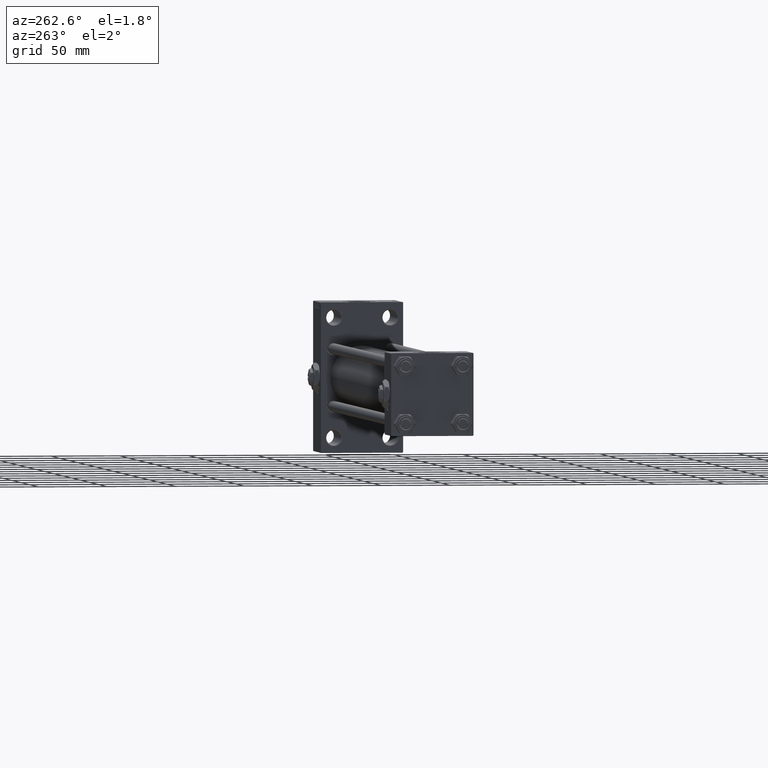
[diagram: clean part render]
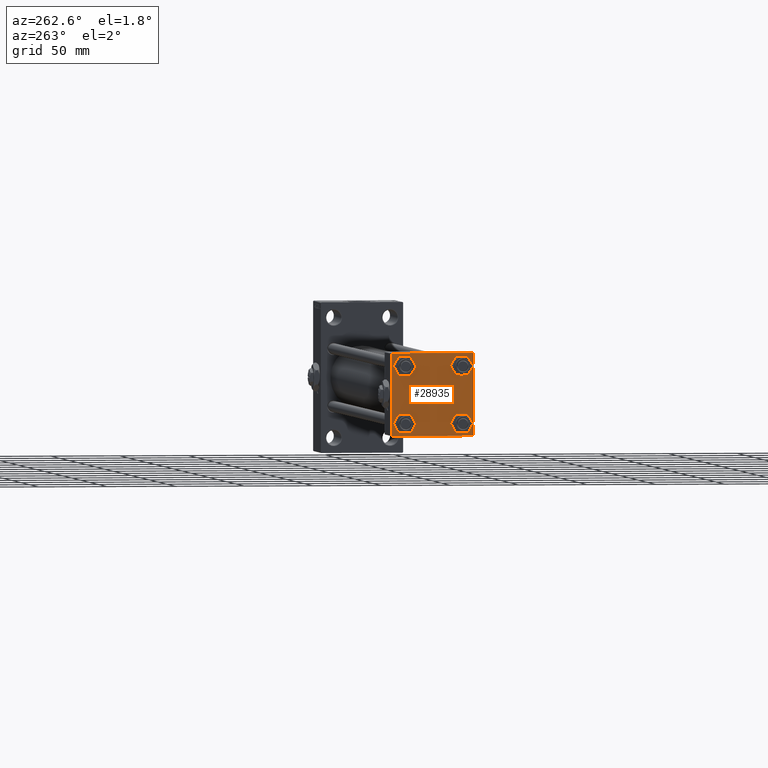
[diagram: same view with one face highlighted and labeled with its STEP entity id]
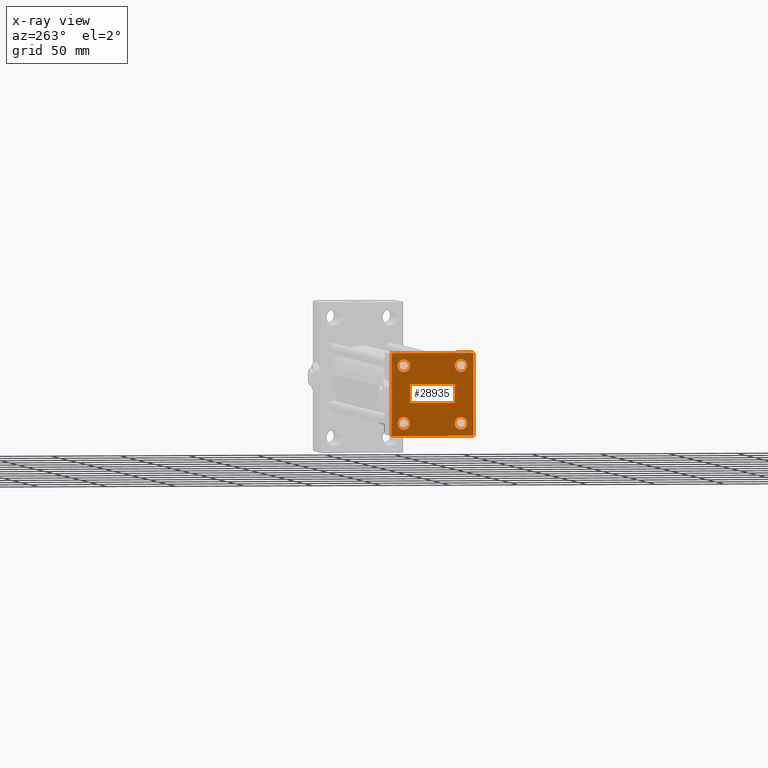
[diagram: x-ray of the same camera — body ghosted, the highlighted face saturated]
A machine part, auxiliary view. The second image highlights one B-rep face of the part: STEP entity #28935.
The next image is the same camera in x-ray: the body ghosted, the highlighted face saturated — about 0% of this face is hidden behind the body in this view.
In plain terms, the highlighted planar face has unit normal (-1, 0, 0).
Its self-contained STEP definition (entity closure, byte-faithful):
#411 = DIRECTION ( 'NONE',  ( 1.000000000000000000, -0.000000000000000000, 0.000000000000000000 ) ) ;
#1104 = ORIENTED_EDGE ( 'NONE', *, *, #23249, .T. ) ;
#1272 = DIRECTION ( 'NONE',  ( 0.000000000000000000, 0.000000000000000000, 1.000000000000000000 ) ) ;
#2023 = CIRCLE ( 'NONE', #35783, 4.500000000000017764 ) ;
#3257 = EDGE_CURVE ( 'NONE', #42248, #42733, #22132, .T. ) ;
#4174 = DIRECTION ( 'NONE',  ( 0.000000000000000000, -1.000000000000000000, -1.156482317317871725E-16 ) ) ;
#4233 = CIRCLE ( 'NONE', #47016, 4.500000000000017764 ) ;
#5017 = EDGE_CURVE ( 'NONE', #9885, #16781, #4233, .T. ) ;
#5416 = CARTESIAN_POINT ( 'NONE',  ( 0.000000000000000000, 29.49999999999999289, 30.00000000000000000 ) ) ;
#6948 = VECTOR ( 'NONE', #35025, 1000.000000000000000 ) ;
#7269 = DIRECTION ( 'NONE',  ( 1.000000000000000000, -0.000000000000000000, 0.000000000000000000 ) ) ;
#7451 = DIRECTION ( 'NONE',  ( 0.000000000000000000, 0.000000000000000000, 1.000000000000000000 ) ) ;
#7732 = CARTESIAN_POINT ( 'NONE',  ( 0.000000000000000000, 20.84999999999999787, -25.35000000000001918 ) ) ;
#7992 = FACE_BOUND ( 'NONE', #37170, .T. ) ;
#8558 = VERTEX_POINT ( 'NONE', #49642 ) ;
#9237 = CARTESIAN_POINT ( 'NONE',  ( 0.000000000000000000, -20.84999999999999076, 16.34999999999998721 ) ) ;
#9362 = CARTESIAN_POINT ( 'NONE',  ( 0.000000000000000000, 20.84999999999999787, -16.34999999999998366 ) ) ;
#9639 = ORIENTED_EDGE ( 'NONE', *, *, #50143, .F. ) ;
#9857 = LINE ( 'NONE', #37456, #17950 ) ;
#9885 = VERTEX_POINT ( 'NONE', #9362 ) ;
#10247 = EDGE_CURVE ( 'NONE', #17386, #35550, #15953, .T. ) ;
#10268 = CARTESIAN_POINT ( 'NONE',  ( 0.000000000000000000, -29.75000000000001066, -29.75000000000001066 ) ) ;
#11302 = DIRECTION ( 'NONE',  ( 0.000000000000000000, -1.000000000000000000, -1.156482317317871725E-16 ) ) ;
#11694 = ORIENTED_EDGE ( 'NONE', *, *, #14799, .T. ) ;
#11864 = FACE_OUTER_BOUND ( 'NONE', #42302, .T. ) ;
#12693 = VERTEX_POINT ( 'NONE', #36438 ) ;
#13058 = VECTOR ( 'NONE', #30112, 1000.000000000000114 ) ;
#14799 = EDGE_CURVE ( 'NONE', #15946, #48451, #19435, .T. ) ;
#14805 = EDGE_CURVE ( 'NONE', #45887, #31214, #40010, .T. ) ;
#14854 = DIRECTION ( 'NONE',  ( 1.000000000000000000, -0.000000000000000000, 0.000000000000000000 ) ) ;
#15272 = VECTOR ( 'NONE', #48175, 1000.000000000000114 ) ;
#15416 = DIRECTION ( 'NONE',  ( 0.000000000000000000, 0.000000000000000000, 1.000000000000000000 ) ) ;
#15946 = VERTEX_POINT ( 'NONE', #44129 ) ;
#15953 = CIRCLE ( 'NONE', #18440, 4.500000000000017764 ) ;
#16009 = DIRECTION ( 'NONE',  ( -1.000000000000000000, 0.000000000000000000, -0.000000000000000000 ) ) ;
#16355 = EDGE_CURVE ( 'NONE', #16781, #9885, #24410, .T. ) ;
#16756 = CARTESIAN_POINT ( 'NONE',  ( 0.000000000000000000, -30.00000000000000000, 29.99999999999999289 ) ) ;
#16781 = VERTEX_POINT ( 'NONE', #7732 ) ;
#16861 = ORIENTED_EDGE ( 'NONE', *, *, #5017, .T. ) ;
#16918 = EDGE_CURVE ( 'NONE', #8558, #46335, #28612, .T. ) ;
#17386 = VERTEX_POINT ( 'NONE', #34096 ) ;
#17950 = VECTOR ( 'NONE', #21215, 999.9999999999998863 ) ;
#18311 = CARTESIAN_POINT ( 'NONE',  ( 0.000000000000000000, 20.84999999999999787, 16.34999999999998366 ) ) ;
#18394 = CARTESIAN_POINT ( 'NONE',  ( 0.000000000000000000, -29.50000000000000000, -30.00000000000000711 ) ) ;
#18440 = AXIS2_PLACEMENT_3D ( 'NONE', #21160, #48953, #48711 ) ;
#18559 = ORIENTED_EDGE ( 'NONE', *, *, #39825, .T. ) ;
#18839 = CARTESIAN_POINT ( 'NONE',  ( 0.000000000000000000, 0.000000000000000000, 0.000000000000000000 ) ) ;
#18917 = ORIENTED_EDGE ( 'NONE', *, *, #34909, .T. ) ;
#19087 = ORIENTED_EDGE ( 'NONE', *, *, #14805, .T. ) ;
#19362 = FACE_BOUND ( 'NONE', #31599, .T. ) ;
#19416 = CARTESIAN_POINT ( 'NONE',  ( 0.000000000000000000, 20.84999999999999787, -20.85000000000000142 ) ) ;
#19435 = CIRCLE ( 'NONE', #30122, 4.500000000000017764 ) ;
#20245 = AXIS2_PLACEMENT_3D ( 'NONE', #27052, #26802, #30915 ) ;
#20672 = CARTESIAN_POINT ( 'NONE',  ( 0.000000000000000000, 29.99999999999999289, -30.00000000000000000 ) ) ;
#20768 = DIRECTION ( 'NONE',  ( 0.000000000000000000, 0.000000000000000000, 1.000000000000000000 ) ) ;
#20877 = EDGE_LOOP ( 'NONE', ( #16861, #29995 ) ) ;
#21013 = DIRECTION ( 'NONE',  ( 0.000000000000000000, 0.000000000000000000, 1.000000000000000000 ) ) ;
#21160 = CARTESIAN_POINT ( 'NONE',  ( 0.000000000000000000, -20.84999999999999076, -20.85000000000000497 ) ) ;
#21215 = DIRECTION ( 'NONE',  ( -0.000000000000000000, -0.7071067811865574537, -0.7071067811865376918 ) ) ;
#21242 = EDGE_CURVE ( 'NONE', #8558, #26702, #40444, .T. ) ;
#21721 = DIRECTION ( 'NONE',  ( 1.000000000000000000, -0.000000000000000000, 0.000000000000000000 ) ) ;
#21945 = EDGE_CURVE ( 'NONE', #12693, #26975, #9857, .T. ) ;
#22132 = LINE ( 'NONE', #37620, #38867 ) ;
#22154 = CARTESIAN_POINT ( 'NONE',  ( 0.000000000000000000, 29.49999999999997868, -30.00000000000000000 ) ) ;
#22349 = ORIENTED_EDGE ( 'NONE', *, *, #3257, .T. ) ;
#22371 = EDGE_LOOP ( 'NONE', ( #18559, #19087 ) ) ;
#22596 = CIRCLE ( 'NONE', #29184, 4.500000000000017764 ) ;
#22650 = LINE ( 'NONE', #46351, #37823 ) ;
#22997 = DIRECTION ( 'NONE',  ( 0.000000000000000000, 0.000000000000000000, 1.000000000000000000 ) ) ;
#23249 = EDGE_CURVE ( 'NONE', #28396, #26702, #44811, .T. ) ;
#23501 = CARTESIAN_POINT ( 'NONE',  ( 0.000000000000000000, -30.00000000000000000, -29.50000000000001776 ) ) ;
#24410 = CIRCLE ( 'NONE', #33423, 4.500000000000017764 ) ;
#24509 = VECTOR ( 'NONE', #28081, 1000.000000000000000 ) ;
#24731 = DIRECTION ( 'NONE',  ( 1.000000000000000000, -0.000000000000000000, 0.000000000000000000 ) ) ;
#26687 = CARTESIAN_POINT ( 'NONE',  ( 0.000000000000000000, 20.84999999999999787, 25.35000000000001918 ) ) ;
#26702 = VERTEX_POINT ( 'NONE', #23501 ) ;
#26802 = DIRECTION ( 'NONE',  ( 1.000000000000000000, -0.000000000000000000, 0.000000000000000000 ) ) ;
#26902 = ORIENTED_EDGE ( 'NONE', *, *, #39952, .T. ) ;
#26975 = VERTEX_POINT ( 'NONE', #22154 ) ;
#26993 = ORIENTED_EDGE ( 'NONE', *, *, #21945, .T. ) ;
#27052 = CARTESIAN_POINT ( 'NONE',  ( 0.000000000000000000, 20.84999999999999787, 20.85000000000000142 ) ) ;
#27346 = PLANE ( 'NONE',  #39629 ) ;
#28033 = CARTESIAN_POINT ( 'NONE',  ( 0.000000000000000000, -20.84999999999999076, -16.34999999999998721 ) ) ;
#28081 = DIRECTION ( 'NONE',  ( 0.000000000000000000, 0.000000000000000000, -1.000000000000000000 ) ) ;
#28396 = VERTEX_POINT ( 'NONE', #18394 ) ;
#28612 = LINE ( 'NONE', #32709, #15272 ) ;
#28935 = ADVANCED_FACE ( 'NONE', ( #7992, #19362, #34537, #34803, #11864 ), #27346, .T. ) ;
#29184 = AXIS2_PLACEMENT_3D ( 'NONE', #34415, #14854, #21013 ) ;
#29995 = ORIENTED_EDGE ( 'NONE', *, *, #16355, .T. ) ;
#30112 = DIRECTION ( 'NONE',  ( 0.000000000000000000, -0.7071067811865474617, 0.7071067811865474617 ) ) ;
#30122 = AXIS2_PLACEMENT_3D ( 'NONE', #45162, #21721, #7451 ) ;
#30843 = CARTESIAN_POINT ( 'NONE',  ( 0.000000000000000000, -29.49999999999998579, 29.99999999999999289 ) ) ;
#30915 = DIRECTION ( 'NONE',  ( 0.000000000000000000, 0.000000000000000000, 1.000000000000000000 ) ) ;
#31214 = VERTEX_POINT ( 'NONE', #26687 ) ;
#31599 = EDGE_LOOP ( 'NONE', ( #41033, #37573 ) ) ;
#32709 = CARTESIAN_POINT ( 'NONE',  ( -0.000000000000000000, -29.74999999999999645, 29.74999999999999645 ) ) ;
#33423 = AXIS2_PLACEMENT_3D ( 'NONE', #19416, #7269, #22997 ) ;
#34096 = CARTESIAN_POINT ( 'NONE',  ( 0.000000000000000000, -20.84999999999999076, -25.35000000000002274 ) ) ;
#34415 = CARTESIAN_POINT ( 'NONE',  ( 0.000000000000000000, 20.84999999999999787, 20.85000000000000142 ) ) ;
#34537 = FACE_BOUND ( 'NONE', #20877, .T. ) ;
#34803 = FACE_BOUND ( 'NONE', #22371, .T. ) ;
#34904 = ORIENTED_EDGE ( 'NONE', *, *, #21242, .F. ) ;
#34909 = EDGE_CURVE ( 'NONE', #26975, #28396, #47476, .T. ) ;
#35025 = DIRECTION ( 'NONE',  ( 0.000000000000000000, 0.000000000000000000, -1.000000000000000000 ) ) ;
#35315 = DIRECTION ( 'NONE',  ( -0.000000000000000000, 0.000000000000000000, 1.000000000000000000 ) ) ;
#35318 = EDGE_CURVE ( 'NONE', #35550, #17386, #46321, .T. ) ;
#35500 = DIRECTION ( 'NONE',  ( 1.000000000000000000, -0.000000000000000000, 0.000000000000000000 ) ) ;
#35550 = VERTEX_POINT ( 'NONE', #28033 ) ;
#35783 = AXIS2_PLACEMENT_3D ( 'NONE', #35980, #411, #20768 ) ;
#35980 = CARTESIAN_POINT ( 'NONE',  ( 0.000000000000000000, -20.84999999999999076, 20.85000000000000497 ) ) ;
#36438 = CARTESIAN_POINT ( 'NONE',  ( 0.000000000000000000, 29.99999999999999289, -29.50000000000000000 ) ) ;
#37170 = EDGE_LOOP ( 'NONE', ( #11694, #26902 ) ) ;
#37456 = CARTESIAN_POINT ( 'NONE',  ( 0.000000000000000000, 29.74999999999957723, -29.75000000000040501 ) ) ;
#37573 = ORIENTED_EDGE ( 'NONE', *, *, #10247, .T. ) ;
#37620 = CARTESIAN_POINT ( 'NONE',  ( 0.000000000000000000, 29.74999999999999645, 29.74999999999999645 ) ) ;
#37663 = ORIENTED_EDGE ( 'NONE', *, *, #16918, .T. ) ;
#37746 = ORIENTED_EDGE ( 'NONE', *, *, #43245, .T. ) ;
#37823 = VECTOR ( 'NONE', #11302, 1000.000000000000000 ) ;
#38867 = VECTOR ( 'NONE', #49942, 1000.000000000000114 ) ;
#39629 = AXIS2_PLACEMENT_3D ( 'NONE', #18839, #16009, #35315 ) ;
#39825 = EDGE_CURVE ( 'NONE', #31214, #45887, #22596, .T. ) ;
#39952 = EDGE_CURVE ( 'NONE', #48451, #15946, #2023, .T. ) ;
#40010 = CIRCLE ( 'NONE', #20245, 4.500000000000017764 ) ;
#40444 = LINE ( 'NONE', #16756, #24509 ) ;
#41033 = ORIENTED_EDGE ( 'NONE', *, *, #35318, .T. ) ;
#42248 = VERTEX_POINT ( 'NONE', #5416 ) ;
#42302 = EDGE_LOOP ( 'NONE', ( #37746, #26993, #18917, #1104, #34904, #37663, #9639, #22349 ) ) ;
#42733 = VERTEX_POINT ( 'NONE', #48079 ) ;
#42752 = CARTESIAN_POINT ( 'NONE',  ( 0.000000000000000000, 29.99999999999999289, 30.00000000000000000 ) ) ;
#43245 = EDGE_CURVE ( 'NONE', #42733, #12693, #46622, .T. ) ;
#44070 = CARTESIAN_POINT ( 'NONE',  ( 0.000000000000000000, -20.84999999999999076, -20.85000000000000497 ) ) ;
#44129 = CARTESIAN_POINT ( 'NONE',  ( 0.000000000000000000, -20.84999999999999076, 25.35000000000002274 ) ) ;
#44811 = LINE ( 'NONE', #10268, #13058 ) ;
#45162 = CARTESIAN_POINT ( 'NONE',  ( 0.000000000000000000, -20.84999999999999076, 20.85000000000000497 ) ) ;
#45438 = VECTOR ( 'NONE', #4174, 1000.000000000000000 ) ;
#45887 = VERTEX_POINT ( 'NONE', #18311 ) ;
#46321 = CIRCLE ( 'NONE', #48781, 4.500000000000017764 ) ;
#46335 = VERTEX_POINT ( 'NONE', #30843 ) ;
#46351 = CARTESIAN_POINT ( 'NONE',  ( 0.000000000000000000, 29.99999999999999289, 30.00000000000000000 ) ) ;
#46622 = LINE ( 'NONE', #42752, #6948 ) ;
#47016 = AXIS2_PLACEMENT_3D ( 'NONE', #50945, #35500, #15416 ) ;
#47476 = LINE ( 'NONE', #20672, #45438 ) ;
#48079 = CARTESIAN_POINT ( 'NONE',  ( 0.000000000000000000, 29.99999999999999289, 29.50000000000000000 ) ) ;
#48175 = DIRECTION ( 'NONE',  ( -0.000000000000000000, 0.7071067811865474617, 0.7071067811865474617 ) ) ;
#48451 = VERTEX_POINT ( 'NONE', #9237 ) ;
#48711 = DIRECTION ( 'NONE',  ( 0.000000000000000000, 0.000000000000000000, 1.000000000000000000 ) ) ;
#48781 = AXIS2_PLACEMENT_3D ( 'NONE', #44070, #24731, #1272 ) ;
#48953 = DIRECTION ( 'NONE',  ( 1.000000000000000000, -0.000000000000000000, 0.000000000000000000 ) ) ;
#49642 = CARTESIAN_POINT ( 'NONE',  ( 0.000000000000000000, -30.00000000000000000, 29.49999999999999289 ) ) ;
#49942 = DIRECTION ( 'NONE',  ( 0.000000000000000000, 0.7071067811865474617, -0.7071067811865474617 ) ) ;
#50143 = EDGE_CURVE ( 'NONE', #42248, #46335, #22650, .T. ) ;
#50945 = CARTESIAN_POINT ( 'NONE',  ( 0.000000000000000000, 20.84999999999999787, -20.85000000000000142 ) ) ;